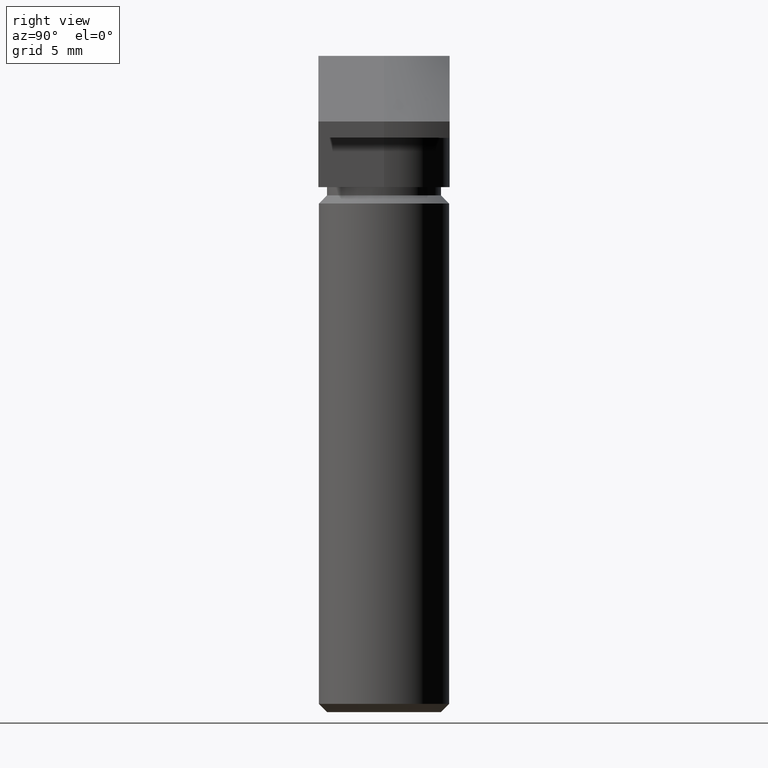
[diagram: clean part render]
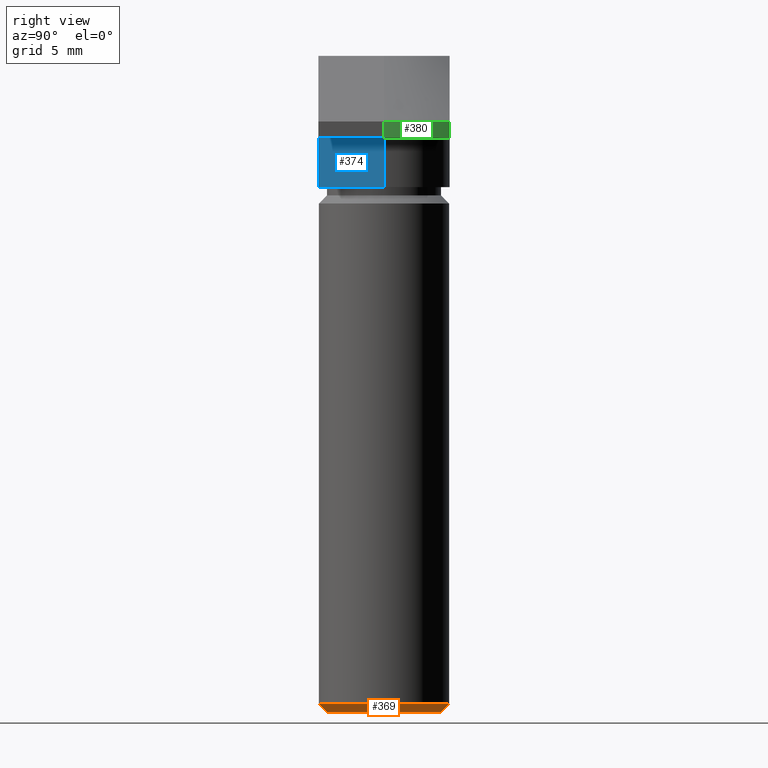
[diagram: same view with three faces highlighted in distinct colors, each labeled with its STEP entity id]
A machine part, right view with three faces highlighted in distinct colors.
Their STEP definitions:

[orange] entity #369 — the highlighted conical surface has half-angle 45 deg.
#106=FACE_BOUND('',#137,.T.);
#111=FACE_OUTER_BOUND('',#136,.T.);
#136=EDGE_LOOP('',(#265));
#137=EDGE_LOOP('',(#266));
#162=CIRCLE('',#396,4.);
#163=CIRCLE('',#398,3.5);
#177=VERTEX_POINT('',#549);
#178=VERTEX_POINT('',#552);
#212=EDGE_CURVE('',#177,#177,#162,.T.);
#213=EDGE_CURVE('',#178,#178,#163,.T.);
#265=ORIENTED_EDGE('',*,*,#212,.T.);
#266=ORIENTED_EDGE('',*,*,#213,.T.);
#364=CONICAL_SURFACE('',#397,3.75,45.0000000000001);
#369=ADVANCED_FACE('',(#111,#106),#364,.T.);
#396=AXIS2_PLACEMENT_3D('',#550,#440,#441);
#397=AXIS2_PLACEMENT_3D('',#551,#442,#443);
#398=AXIS2_PLACEMENT_3D('',#553,#444,#445);
#440=DIRECTION('center_axis',(0.,0.,-1.));
#441=DIRECTION('ref_axis',(1.,0.,0.));
#442=DIRECTION('center_axis',(0.,0.,1.));
#443=DIRECTION('ref_axis',(1.,0.,0.));
#444=DIRECTION('center_axis',(0.,0.,1.));
#445=DIRECTION('ref_axis',(1.,0.,0.));
#549=CARTESIAN_POINT('',(-4.,4.89858719658941E-16,-39.5));
#550=CARTESIAN_POINT('Origin',(0.,0.,-39.5));
#551=CARTESIAN_POINT('Origin',(0.,0.,-39.75));
#552=CARTESIAN_POINT('',(-3.5,-4.28626379701574E-16,-40.));
#553=CARTESIAN_POINT('Origin',(0.,0.,-40.));

[blue] entity #374 — the highlighted planar face has unit normal (1, 0, 0).
#22=LINE('',#576,#56);
#23=LINE('',#578,#57);
#24=LINE('',#580,#58);
#25=LINE('',#581,#59);
#56=VECTOR('',#467,3.99999999999999);
#57=VECTOR('',#468,3.);
#58=VECTOR('',#469,3.99999999999999);
#59=VECTOR('',#470,3.);
#87=PLANE('',#406);
#116=FACE_OUTER_BOUND('',#143,.T.);
#143=EDGE_LOOP('',(#278,#279,#280,#281));
#186=VERTEX_POINT('',#574);
#187=VERTEX_POINT('',#575);
#188=VERTEX_POINT('',#577);
#189=VERTEX_POINT('',#579);
#222=EDGE_CURVE('',#186,#187,#22,.T.);
#223=EDGE_CURVE('',#186,#188,#23,.T.);
#224=EDGE_CURVE('',#189,#188,#24,.T.);
#225=EDGE_CURVE('',#187,#189,#25,.T.);
#278=ORIENTED_EDGE('',*,*,#222,.F.);
#279=ORIENTED_EDGE('',*,*,#223,.T.);
#280=ORIENTED_EDGE('',*,*,#224,.F.);
#281=ORIENTED_EDGE('',*,*,#225,.F.);
#374=ADVANCED_FACE('',(#116),#87,.T.);
#406=AXIS2_PLACEMENT_3D('',#573,#465,#466);
#465=DIRECTION('center_axis',(1.,0.,0.));
#466=DIRECTION('ref_axis',(0.,-1.,0.));
#467=DIRECTION('',(0.,1.,0.));
#468=DIRECTION('',(0.,0.,-1.));
#469=DIRECTION('',(0.,-1.,0.));
#470=DIRECTION('',(0.,0.,-1.));
#573=CARTESIAN_POINT('Origin',(3.99999999999999,-1.49880108324396E-14,-5.));
#574=CARTESIAN_POINT('',(3.99999999999999,-4.00000000000001,-5.));
#575=CARTESIAN_POINT('',(3.99999999999999,-1.49880108324396E-14,-5.));
#576=CARTESIAN_POINT('',(3.99999999999999,-7.49400541621981E-15,-5.));
#577=CARTESIAN_POINT('',(3.99999999999999,-4.00000000000001,-8.));
#578=CARTESIAN_POINT('',(3.99999999999999,-4.00000000000001,-5.));
#579=CARTESIAN_POINT('',(3.99999999999999,-1.49880108324396E-14,-8.));
#580=CARTESIAN_POINT('',(3.99999999999999,-4.00000000000001,-8.));
#581=CARTESIAN_POINT('',(3.99999999999999,-1.49880108324396E-14,-5.));

[green] entity #380 — the highlighted cylindrical surface (partial cylindrical patch) has radius 9 mm, axis along (0, 0, 1).
#36=LINE('',#619,#70);
#37=LINE('',#620,#71);
#70=VECTOR('',#505,1.);
#71=VECTOR('',#506,1.);
#102=CYLINDRICAL_SURFACE('',#418,9.);
#122=FACE_OUTER_BOUND('',#150,.T.);
#150=EDGE_LOOP('',(#309,#310,#311,#312));
#170=CIRCLE('',#414,9.);
#172=CIRCLE('',#417,9.);
#195=VERTEX_POINT('',#600);
#196=VERTEX_POINT('',#602);
#199=VERTEX_POINT('',#609);
#201=VERTEX_POINT('',#615);
#236=EDGE_CURVE('',#195,#196,#170,.T.);
#242=EDGE_CURVE('',#201,#199,#172,.T.);
#243=EDGE_CURVE('',#199,#195,#36,.T.);
#244=EDGE_CURVE('',#201,#196,#37,.T.);
#309=ORIENTED_EDGE('',*,*,#243,.F.);
#310=ORIENTED_EDGE('',*,*,#242,.F.);
#311=ORIENTED_EDGE('',*,*,#244,.T.);
#312=ORIENTED_EDGE('',*,*,#236,.F.);
#380=ADVANCED_FACE('',(#122),#102,.T.);
#414=AXIS2_PLACEMENT_3D('',#603,#492,#493);
#417=AXIS2_PLACEMENT_3D('',#617,#501,#502);
#418=AXIS2_PLACEMENT_3D('',#618,#503,#504);
#492=DIRECTION('center_axis',(0.,0.,-1.));
#493=DIRECTION('ref_axis',(1.,0.,0.));
#501=DIRECTION('center_axis',(2.9781283147877E-16,2.9781283147877E-16,1.));
#502=DIRECTION('ref_axis',(1.,1.2335811384724E-16,-3.08395284618099E-16));
#503=DIRECTION('center_axis',(0.,0.,1.));
#504=DIRECTION('ref_axis',(1.,0.,0.));
#505=DIRECTION('',(0.,0.,-1.));
#506=DIRECTION('',(0.,0.,-1.));
#600=CARTESIAN_POINT('',(8.06225774829855,4.,-5.));
#602=CARTESIAN_POINT('',(9.,0.,-5.));
#603=CARTESIAN_POINT('Origin',(0.,0.,-5.));
#609=CARTESIAN_POINT('',(8.06225774829855,4.,-4.));
#615=CARTESIAN_POINT('',(9.,0.,-4.));
#617=CARTESIAN_POINT('Origin',(-1.11022302462516E-15,-1.11022302462516E-15,
-4.));
#618=CARTESIAN_POINT('Origin',(0.,0.,-4.5));
#619=CARTESIAN_POINT('',(8.06225774829855,4.,-4.5));
#620=CARTESIAN_POINT('',(9.,0.,-4.5));